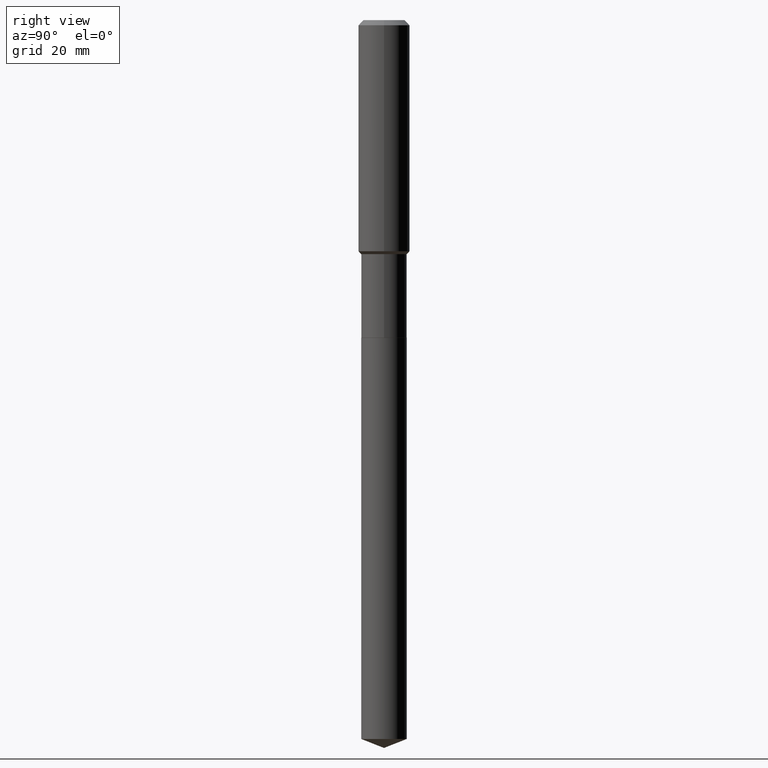
[diagram: clean part render]
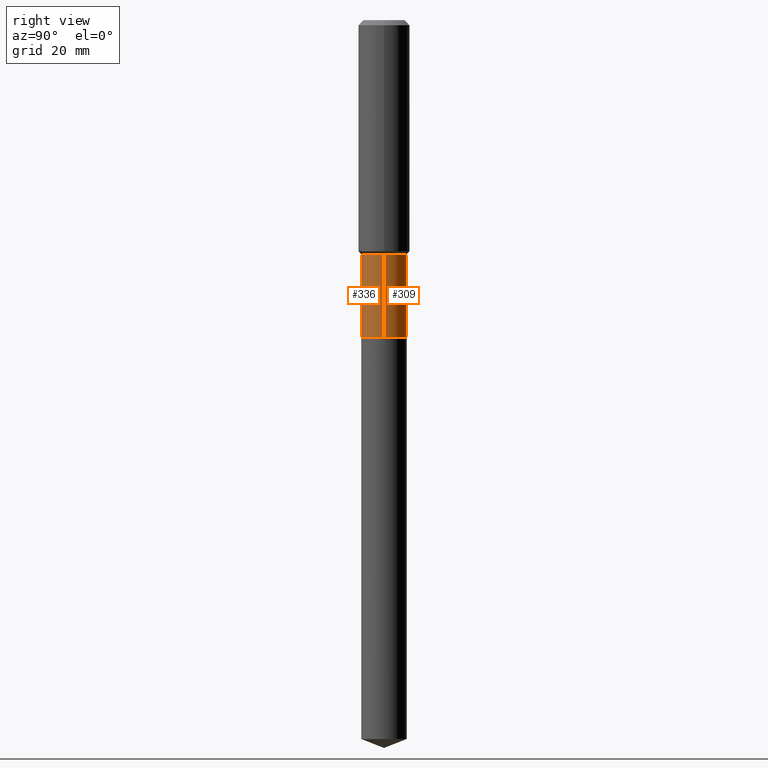
[diagram: same view with one multi-face feature highlighted, each face labeled with its STEP entity id]
A machine part, right view. The highlighted faces form ONE feature: a constant-radius fillet chain: 2 tangent blend faces with common blend radius 4.4501 mm. The faces share edges in the B-rep.
Their STEP definitions:
[1] entity #309 (Cylinder):
#4 = LINE ( 'NONE', #311, #272 ) ;
#27 = CARTESIAN_POINT ( 'NONE',  ( 0.1751999999999999391, -1.223415061130633483E-15, 8.543061711194476516E-30 ) ) ;
#37 = DIRECTION ( 'NONE',  ( 1.000000000000000000, -6.982962677686263555E-15, 0.000000000000000000 ) ) ;
#71 = CARTESIAN_POINT ( 'NONE',  ( 4.396219272879018091E-29, -6.276636002838320056E-15, -1.797699999999999187 ) ) ;
#90 = ORIENTED_EDGE ( 'NONE', *, *, #352, .T. ) ;
#122 = VERTEX_POINT ( 'NONE', #289 ) ;
#129 = VERTEX_POINT ( 'NONE', #145 ) ;
#133 = AXIS2_PLACEMENT_3D ( 'NONE', #374, #420, #345 ) ;
#134 = EDGE_CURVE ( 'NONE', #122, #184, #221, .T. ) ;
#145 = CARTESIAN_POINT ( 'NONE',  ( -0.1751999999999999946, -6.153752658023869285E-15, -2.440399999999999014 ) ) ;
#146 = LINE ( 'NONE', #27, #399 ) ;
#173 = DIRECTION ( 'NONE',  ( -2.445468806185136597E-29, 3.491481338843145583E-15, 1.000000000000000000 ) ) ;
#179 = EDGE_CURVE ( 'NONE', #404, #122, #146, .T. ) ;
#184 = VERTEX_POINT ( 'NONE', #329 ) ;
#221 = CIRCLE ( 'NONE', #338, 0.1751999999999999114 ) ;
#225 = CYLINDRICAL_SURFACE ( 'NONE', #133, 0.1751999999999999391 ) ;
#245 = ORIENTED_EDGE ( 'NONE', *, *, #134, .F. ) ;
#263 = FACE_OUTER_BOUND ( 'NONE', #285, .T. ) ;
#264 = CIRCLE ( 'NONE', #317, 0.1751999999999999946 ) ;
#272 = VECTOR ( 'NONE', #451, 39.37007874015748143 ) ;
#282 = ORIENTED_EDGE ( 'NONE', *, *, #179, .F. ) ;
#285 = EDGE_LOOP ( 'NONE', ( #353, #90, #245, #282 ) ) ;
#289 = CARTESIAN_POINT ( 'NONE',  ( 0.1751999999999999114, -7.500051063968953144E-15, -1.797699999999999187 ) ) ;
#306 = DIRECTION ( 'NONE',  ( -2.445468806185136597E-29, 3.491481338843145583E-15, 1.000000000000000000 ) ) ;
#308 = CARTESIAN_POINT ( 'NONE',  ( 5.967922074614205116E-29, -8.520611059312809095E-15, -2.440399999999999014 ) ) ;
#309 = ADVANCED_FACE ( 'NONE', ( #263 ), #225, .T. ) ;
#311 = CARTESIAN_POINT ( 'NONE',  ( -0.1751999999999999391, 1.244870873051695093E-15, -8.617974278126592972E-30 ) ) ;
#317 = AXIS2_PLACEMENT_3D ( 'NONE', #308, #306, #37 ) ;
#329 = CARTESIAN_POINT ( 'NONE',  ( -0.1751999999999999114, -6.153752658023869285E-15, -1.797699999999999187 ) ) ;
#338 = AXIS2_PLACEMENT_3D ( 'NONE', #71, #173, #372 ) ;
#345 = DIRECTION ( 'NONE',  ( 1.000000000000000000, -6.982962677686266711E-15, 4.876176775795935793E-29 ) ) ;
#352 = EDGE_CURVE ( 'NONE', #129, #184, #4, .T. ) ;
#353 = ORIENTED_EDGE ( 'NONE', *, *, #389, .T. ) ;
#367 = DIRECTION ( 'NONE',  ( -2.445468806185136877E-29, 3.491481338843145188E-15, 1.000000000000000000 ) ) ;
#372 = DIRECTION ( 'NONE',  ( 1.000000000000000000, -6.982962677686266711E-15, 0.000000000000000000 ) ) ;
#374 = CARTESIAN_POINT ( 'NONE',  ( 0.000000000000000000, 0.000000000000000000, 0.000000000000000000 ) ) ;
#389 = EDGE_CURVE ( 'NONE', #404, #129, #264, .T. ) ;
#399 = VECTOR ( 'NONE', #367, 39.37007874015748143 ) ;
#404 = VERTEX_POINT ( 'NONE', #453 ) ;
#420 = DIRECTION ( 'NONE',  ( -2.445468806185136597E-29, 3.491481338843145583E-15, 1.000000000000000000 ) ) ;
#451 = DIRECTION ( 'NONE',  ( -2.445468806185136877E-29, 3.491481338843145188E-15, 1.000000000000000000 ) ) ;
#453 = CARTESIAN_POINT ( 'NONE',  ( 0.1751999999999999946, -9.744026120443442973E-15, -2.440399999999999014 ) ) ;
[2] entity #336 (Cylinder):
#4 = LINE ( 'NONE', #311, #272 ) ;
#7 = FACE_OUTER_BOUND ( 'NONE', #226, .T. ) ;
#13 = ORIENTED_EDGE ( 'NONE', *, *, #179, .T. ) ;
#23 = EDGE_CURVE ( 'NONE', #184, #122, #72, .T. ) ;
#25 = CIRCLE ( 'NONE', #214, 0.1751999999999999946 ) ;
#27 = CARTESIAN_POINT ( 'NONE',  ( 0.1751999999999999391, -1.223415061130633483E-15, 8.543061711194476516E-30 ) ) ;
#64 = DIRECTION ( 'NONE',  ( -2.445468806185136597E-29, 3.491481338843145583E-15, 1.000000000000000000 ) ) ;
#72 = CIRCLE ( 'NONE', #231, 0.1751999999999999114 ) ;
#101 = DIRECTION ( 'NONE',  ( 1.000000000000000000, -6.982962677686263555E-15, 0.000000000000000000 ) ) ;
#122 = VERTEX_POINT ( 'NONE', #289 ) ;
#129 = VERTEX_POINT ( 'NONE', #145 ) ;
#136 = CARTESIAN_POINT ( 'NONE',  ( 4.396219272879018091E-29, -6.276636002838320056E-15, -1.797699999999999187 ) ) ;
#145 = CARTESIAN_POINT ( 'NONE',  ( -0.1751999999999999946, -6.153752658023869285E-15, -2.440399999999999014 ) ) ;
#146 = LINE ( 'NONE', #27, #399 ) ;
#157 = ORIENTED_EDGE ( 'NONE', *, *, #23, .F. ) ;
#179 = EDGE_CURVE ( 'NONE', #404, #122, #146, .T. ) ;
#184 = VERTEX_POINT ( 'NONE', #329 ) ;
#204 = EDGE_CURVE ( 'NONE', #129, #404, #25, .T. ) ;
#214 = AXIS2_PLACEMENT_3D ( 'NONE', #335, #478, #101 ) ;
#226 = EDGE_LOOP ( 'NONE', ( #381, #318, #13, #157 ) ) ;
#231 = AXIS2_PLACEMENT_3D ( 'NONE', #136, #64, #249 ) ;
#249 = DIRECTION ( 'NONE',  ( 1.000000000000000000, -6.982962677686266711E-15, 0.000000000000000000 ) ) ;
#270 = DIRECTION ( 'NONE',  ( -2.445468806185136597E-29, 3.491481338843145583E-15, 1.000000000000000000 ) ) ;
#272 = VECTOR ( 'NONE', #451, 39.37007874015748143 ) ;
#276 = DIRECTION ( 'NONE',  ( 1.000000000000000000, -6.982962677686266711E-15, 4.876176775795935793E-29 ) ) ;
#289 = CARTESIAN_POINT ( 'NONE',  ( 0.1751999999999999114, -7.500051063968953144E-15, -1.797699999999999187 ) ) ;
#311 = CARTESIAN_POINT ( 'NONE',  ( -0.1751999999999999391, 1.244870873051695093E-15, -8.617974278126592972E-30 ) ) ;
#318 = ORIENTED_EDGE ( 'NONE', *, *, #204, .T. ) ;
#329 = CARTESIAN_POINT ( 'NONE',  ( -0.1751999999999999114, -6.153752658023869285E-15, -1.797699999999999187 ) ) ;
#335 = CARTESIAN_POINT ( 'NONE',  ( 5.967922074614205116E-29, -8.520611059312809095E-15, -2.440399999999999014 ) ) ;
#336 = ADVANCED_FACE ( 'NONE', ( #7 ), #423, .T. ) ;
#352 = EDGE_CURVE ( 'NONE', #129, #184, #4, .T. ) ;
#367 = DIRECTION ( 'NONE',  ( -2.445468806185136877E-29, 3.491481338843145188E-15, 1.000000000000000000 ) ) ;
#381 = ORIENTED_EDGE ( 'NONE', *, *, #352, .F. ) ;
#399 = VECTOR ( 'NONE', #367, 39.37007874015748143 ) ;
#404 = VERTEX_POINT ( 'NONE', #453 ) ;
#416 = CARTESIAN_POINT ( 'NONE',  ( 0.000000000000000000, 0.000000000000000000, 0.000000000000000000 ) ) ;
#423 = CYLINDRICAL_SURFACE ( 'NONE', #483, 0.1751999999999999391 ) ;
#451 = DIRECTION ( 'NONE',  ( -2.445468806185136877E-29, 3.491481338843145188E-15, 1.000000000000000000 ) ) ;
#453 = CARTESIAN_POINT ( 'NONE',  ( 0.1751999999999999946, -9.744026120443442973E-15, -2.440399999999999014 ) ) ;
#478 = DIRECTION ( 'NONE',  ( -2.445468806185136597E-29, 3.491481338843145583E-15, 1.000000000000000000 ) ) ;
#483 = AXIS2_PLACEMENT_3D ( 'NONE', #416, #270, #276 ) ;